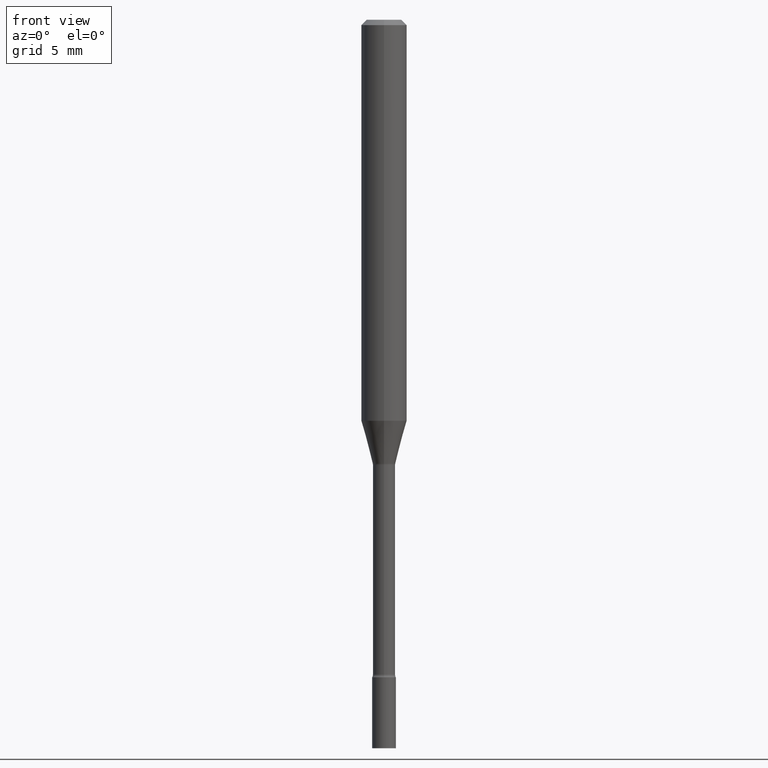
[diagram: clean part render]
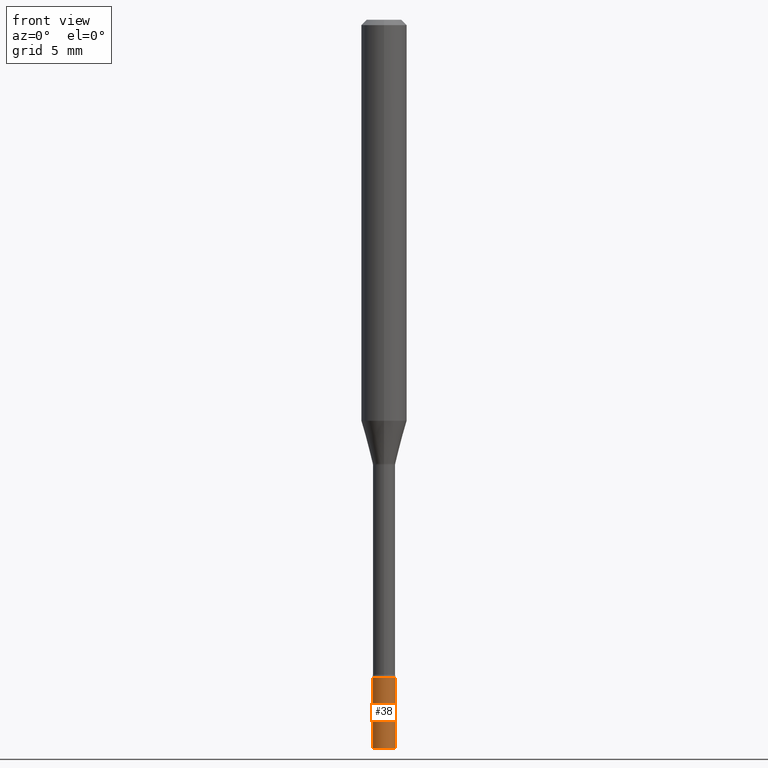
[diagram: same view with one face highlighted and labeled with its STEP entity id]
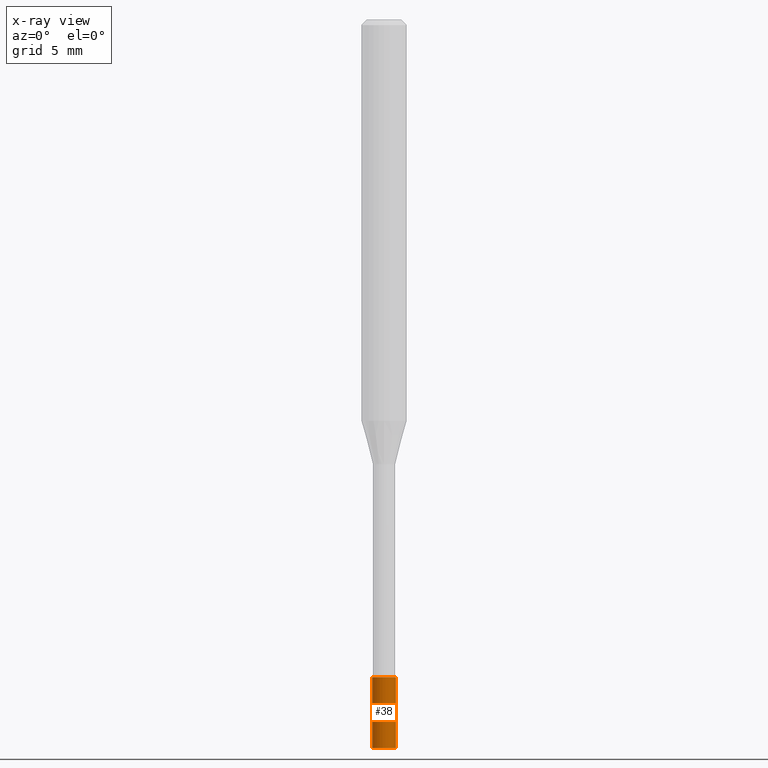
[diagram: x-ray of the same camera — body ghosted, the highlighted face saturated]
A machine part, front view. The second image highlights one B-rep face of the part: STEP entity #38.
The next image is the same camera in x-ray: the body ghosted, the highlighted face saturated — about 0% of this face is hidden behind the body in this view.
In plain terms, the highlighted cylindrical surface (edge-blend (fillet) strip) has radius 0.8255 mm, axis along (-0, 0, 1).
Its self-contained STEP definition (entity closure, byte-faithful):
#10 = ORIENTED_EDGE ( 'NONE', *, *, #128, .T. ) ;
#37 = VERTEX_POINT ( 'NONE', #69 ) ;
#38 = ADVANCED_FACE ( 'NONE', ( #230 ), #393, .T. ) ;
#39 = LINE ( 'NONE', #326, #434 ) ;
#69 = CARTESIAN_POINT ( 'NONE',  ( 0.03250000000000000111, -6.529070103636681305E-15, -1.804999999999999938 ) ) ;
#72 = CARTESIAN_POINT ( 'NONE',  ( 0.000000000000000000, 0.000000000000000000, 0.000000000000000000 ) ) ;
#95 = CARTESIAN_POINT ( 'NONE',  ( 0.03250000000000000111, -7.209908964711093729E-15, -2.000000000000000000 ) ) ;
#106 = CARTESIAN_POINT ( 'NONE',  ( -0.03250000000000000111, 2.309263891220325683E-16, -1.598653904332844407E-30 ) ) ;
#120 = AXIS2_PLACEMENT_3D ( 'NONE', #72, #481, #354 ) ;
#128 = EDGE_CURVE ( 'NONE', #380, #37, #39, .T. ) ;
#134 = CARTESIAN_POINT ( 'NONE',  ( 4.890937612370273194E-29, -6.982962677686291165E-15, -2.000000000000000000 ) ) ;
#217 = CARTESIAN_POINT ( 'NONE',  ( 4.414071195164171423E-29, -6.302123816611877952E-15, -1.804999999999999938 ) ) ;
#225 = EDGE_LOOP ( 'NONE', ( #260, #336, #10, #386 ) ) ;
#230 = FACE_OUTER_BOUND ( 'NONE', #225, .T. ) ;
#232 = CIRCLE ( 'NONE', #390, 0.03250000000000000111 ) ;
#235 = LINE ( 'NONE', #106, #303 ) ;
#252 = DIRECTION ( 'NONE',  ( -2.445468806185136597E-29, 3.491481338843145583E-15, 1.000000000000000000 ) ) ;
#258 = AXIS2_PLACEMENT_3D ( 'NONE', #134, #252, #417 ) ;
#260 = ORIENTED_EDGE ( 'NONE', *, *, #411, .F. ) ;
#263 = EDGE_CURVE ( 'NONE', #490, #37, #232, .T. ) ;
#271 = EDGE_CURVE ( 'NONE', #502, #380, #318, .T. ) ;
#274 = CARTESIAN_POINT ( 'NONE',  ( -0.03250000000000000111, -6.411616858027052188E-15, -2.000000000000000000 ) ) ;
#303 = VECTOR ( 'NONE', #519, 39.37007874015748143 ) ;
#318 = CIRCLE ( 'NONE', #258, 0.03250000000000000111 ) ;
#326 = CARTESIAN_POINT ( 'NONE',  ( 0.03250000000000000111, -2.269462870248036484E-16, 1.584757452133678993E-30 ) ) ;
#336 = ORIENTED_EDGE ( 'NONE', *, *, #271, .T. ) ;
#337 = DIRECTION ( 'NONE',  ( 1.000000000000000000, -6.982962677686258033E-15, 0.000000000000000000 ) ) ;
#354 = DIRECTION ( 'NONE',  ( 1.000000000000000000, -6.982962677686265922E-15, 4.876176775795935232E-29 ) ) ;
#378 = DIRECTION ( 'NONE',  ( -2.445468806185136597E-29, 3.491481338843145583E-15, 1.000000000000000000 ) ) ;
#380 = VERTEX_POINT ( 'NONE', #95 ) ;
#386 = ORIENTED_EDGE ( 'NONE', *, *, #263, .F. ) ;
#390 = AXIS2_PLACEMENT_3D ( 'NONE', #217, #378, #337 ) ;
#393 = CYLINDRICAL_SURFACE ( 'NONE', #120, 0.03250000000000000111 ) ;
#411 = EDGE_CURVE ( 'NONE', #502, #490, #235, .T. ) ;
#417 = DIRECTION ( 'NONE',  ( 1.000000000000000000, -6.982962677686258033E-15, 0.000000000000000000 ) ) ;
#434 = VECTOR ( 'NONE', #493, 39.37007874015748143 ) ;
#437 = CARTESIAN_POINT ( 'NONE',  ( -0.03250000000000000111, -6.411616858027052188E-15, -1.804999999999999938 ) ) ;
#481 = DIRECTION ( 'NONE',  ( -2.445468806185136597E-29, 3.491481338843145583E-15, 1.000000000000000000 ) ) ;
#490 = VERTEX_POINT ( 'NONE', #437 ) ;
#493 = DIRECTION ( 'NONE',  ( -2.445468806185136877E-29, 3.491481338843145188E-15, 1.000000000000000000 ) ) ;
#502 = VERTEX_POINT ( 'NONE', #274 ) ;
#519 = DIRECTION ( 'NONE',  ( -2.445468806185136877E-29, 3.491481338843145188E-15, 1.000000000000000000 ) ) ;